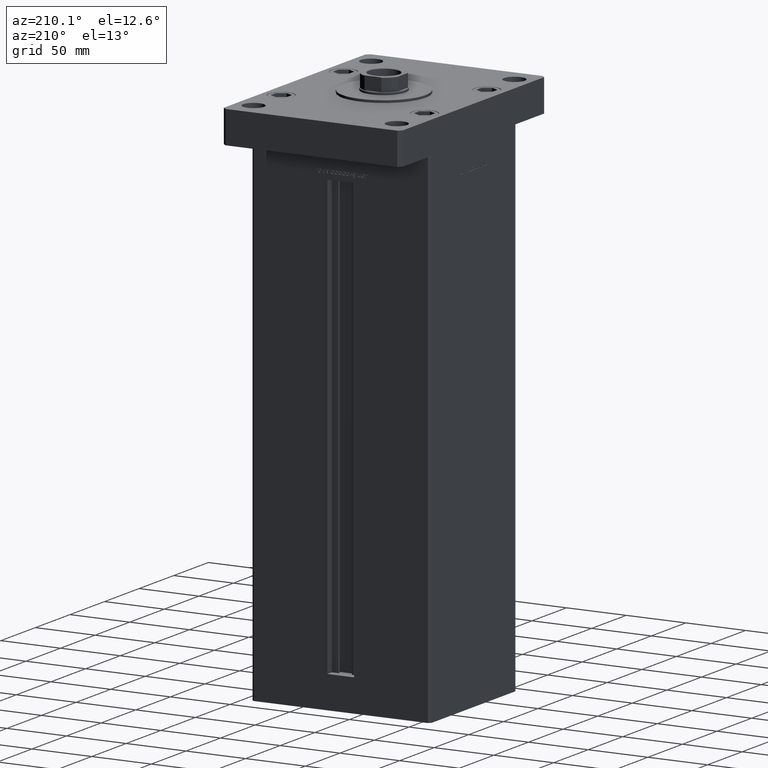
[diagram: clean part render]
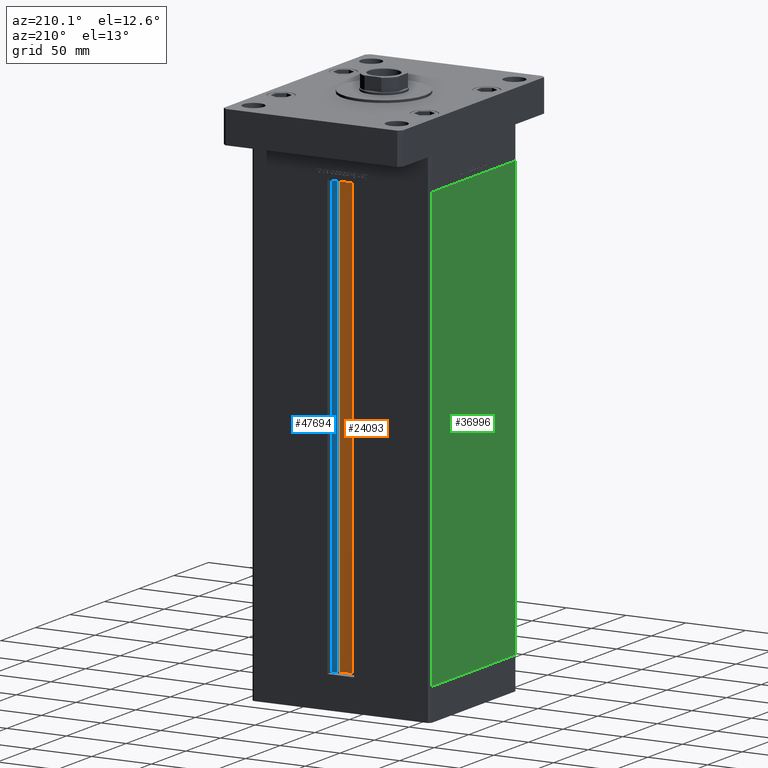
[diagram: same view with three faces highlighted in distinct colors, each labeled with its STEP entity id]
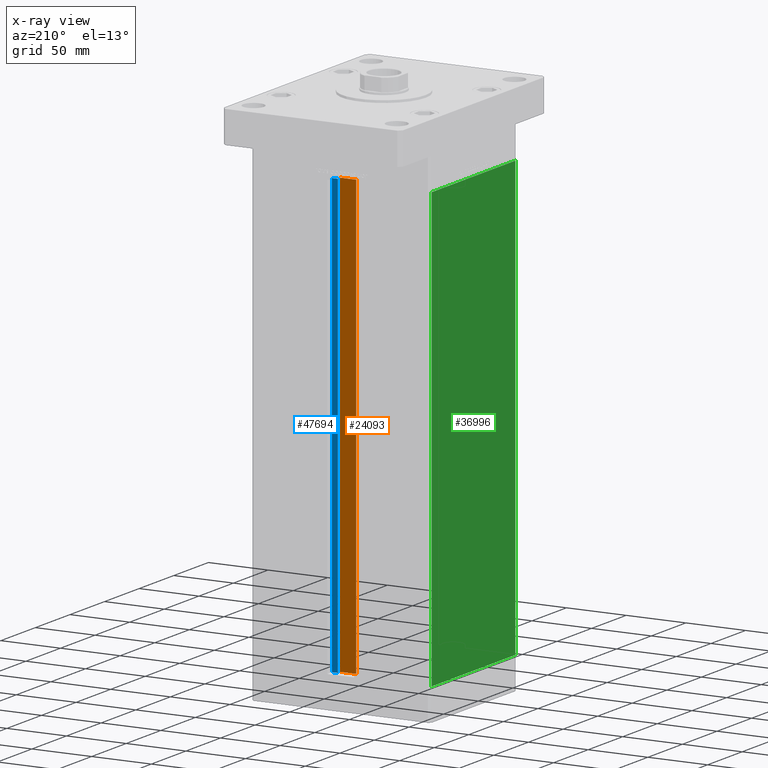
[diagram: x-ray of the same camera — body ghosted, the three highlighted faces saturated]
A machine part, auxiliary view with three faces highlighted in distinct colors.
The next image is the same camera in x-ray (body ghosted, the three faces saturated) — at least one of them is partly hidden behind the body in this view.
Their STEP definitions:

[orange] entity #24093 — the highlighted planar face has unit normal (0, -1, 0).
#1936 = EDGE_CURVE ( 'NONE', #35092, #10897, #30280, .T. ) ;
#2869 = ORIENTED_EDGE ( 'NONE', *, *, #33183, .F. ) ;
#3838 = LINE ( 'NONE', #4635, #18054 ) ;
#4635 = CARTESIAN_POINT ( 'NONE',  ( 6.876153656360466826, 51.99999999999986500, 0.000000000000000000 ) ) ;
#5378 = CARTESIAN_POINT ( 'NONE',  ( -6.876153656360466826, 51.99999999999986500, 0.000000000000000000 ) ) ;
#5651 = DIRECTION ( 'NONE',  ( 0.000000000000000000, -1.000000000000000000, -0.000000000000000000 ) ) ;
#6139 = CARTESIAN_POINT ( 'NONE',  ( 6.876153656360466826, 51.99999999999986500, 0.000000000000000000 ) ) ;
#6922 = VECTOR ( 'NONE', #18764, 1000.000000000000000 ) ;
#9692 = PLANE ( 'NONE',  #48301 ) ;
#10897 = VERTEX_POINT ( 'NONE', #26419 ) ;
#14590 = VECTOR ( 'NONE', #34525, 1000.000000000000000 ) ;
#18054 = VECTOR ( 'NONE', #41245, 1000.000000000000000 ) ;
#18499 = LINE ( 'NONE', #6139, #6922 ) ;
#18726 = EDGE_CURVE ( 'NONE', #35766, #27991, #3838, .T. ) ;
#18764 = DIRECTION ( 'NONE',  ( 1.000000000000000000, -0.000000000000000000, -0.000000000000000000 ) ) ;
#22038 = DIRECTION ( 'NONE',  ( 0.000000000000000000, 0.000000000000000000, -1.000000000000000000 ) ) ;
#22456 = DIRECTION ( 'NONE',  ( -0.000000000000000000, -0.000000000000000000, 1.000000000000000000 ) ) ;
#24093 = ADVANCED_FACE ( 'NONE', ( #46553 ), #9692, .F. ) ;
#24373 = ORIENTED_EDGE ( 'NONE', *, *, #1936, .T. ) ;
#26419 = CARTESIAN_POINT ( 'NONE',  ( -6.876153656360466826, 51.99999999999986500, 367.0000000000000000 ) ) ;
#27991 = VERTEX_POINT ( 'NONE', #31793 ) ;
#30280 = LINE ( 'NONE', #50774, #44305 ) ;
#31012 = CARTESIAN_POINT ( 'NONE',  ( 0.000000000000000000, 51.99999999999986500, 367.0000000000000000 ) ) ;
#31793 = CARTESIAN_POINT ( 'NONE',  ( 6.876153656360466826, 51.99999999999986500, 367.0000000000000000 ) ) ;
#33183 = EDGE_CURVE ( 'NONE', #27991, #10897, #35052, .T. ) ;
#34060 = EDGE_LOOP ( 'NONE', ( #45370, #40730, #24373, #2869 ) ) ;
#34525 = DIRECTION ( 'NONE',  ( -1.000000000000000000, 0.000000000000000000, 0.000000000000000000 ) ) ;
#35052 = LINE ( 'NONE', #31012, #14590 ) ;
#35092 = VERTEX_POINT ( 'NONE', #5378 ) ;
#35766 = VERTEX_POINT ( 'NONE', #46610 ) ;
#37577 = EDGE_CURVE ( 'NONE', #35092, #35766, #18499, .T. ) ;
#40730 = ORIENTED_EDGE ( 'NONE', *, *, #37577, .F. ) ;
#41245 = DIRECTION ( 'NONE',  ( -0.000000000000000000, -0.000000000000000000, 1.000000000000000000 ) ) ;
#42525 = CARTESIAN_POINT ( 'NONE',  ( 6.876153656360466826, 51.99999999999986500, 0.000000000000000000 ) ) ;
#44305 = VECTOR ( 'NONE', #22456, 1000.000000000000000 ) ;
#45370 = ORIENTED_EDGE ( 'NONE', *, *, #18726, .F. ) ;
#46553 = FACE_OUTER_BOUND ( 'NONE', #34060, .T. ) ;
#46610 = CARTESIAN_POINT ( 'NONE',  ( 6.876153656360466826, 51.99999999999986500, 0.000000000000000000 ) ) ;
#48301 = AXIS2_PLACEMENT_3D ( 'NONE', #42525, #5651, #22038 ) ;
#50774 = CARTESIAN_POINT ( 'NONE',  ( -6.876153656360466826, 51.99999999999986500, 0.000000000000000000 ) ) ;

[blue] entity #47694 — the highlighted planar face has unit normal (0, -1, 0).
#1486 = ORIENTED_EDGE ( 'NONE', *, *, #27254, .F. ) ;
#1693 = VERTEX_POINT ( 'NONE', #21991 ) ;
#2532 = ORIENTED_EDGE ( 'NONE', *, *, #42654, .F. ) ;
#4812 = LINE ( 'NONE', #25767, #47113 ) ;
#5851 = VECTOR ( 'NONE', #32858, 1000.000000000000000 ) ;
#7474 = EDGE_LOOP ( 'NONE', ( #1486, #2532, #40479, #26733 ) ) ;
#7884 = CARTESIAN_POINT ( 'NONE',  ( 6.183333333334001480, 55.99999999999999289, 367.0000000000000000 ) ) ;
#8646 = CARTESIAN_POINT ( 'NONE',  ( 11.25000000000000178, 55.99999999999999289, 0.000000000000000000 ) ) ;
#9640 = DIRECTION ( 'NONE',  ( -0.000000000000000000, -0.000000000000000000, 1.000000000000000000 ) ) ;
#10003 = CARTESIAN_POINT ( 'NONE',  ( 6.183333333334001480, 55.99999999999999289, 0.000000000000000000 ) ) ;
#13696 = EDGE_CURVE ( 'NONE', #1693, #42520, #4812, .T. ) ;
#15718 = CARTESIAN_POINT ( 'NONE',  ( 6.183333333334001480, 55.99999999999999289, 0.000000000000000000 ) ) ;
#17476 = AXIS2_PLACEMENT_3D ( 'NONE', #15718, #52365, #32406 ) ;
#18063 = LINE ( 'NONE', #10003, #47414 ) ;
#19128 = CARTESIAN_POINT ( 'NONE',  ( 0.000000000000000000, 55.99999999999999289, 367.0000000000000000 ) ) ;
#19755 = PLANE ( 'NONE',  #17476 ) ;
#21299 = DIRECTION ( 'NONE',  ( 1.000000000000000000, 0.000000000000000000, 0.000000000000000000 ) ) ;
#21991 = CARTESIAN_POINT ( 'NONE',  ( 6.183333333334001480, 55.99999999999999289, 0.000000000000000000 ) ) ;
#22906 = VERTEX_POINT ( 'NONE', #27455 ) ;
#25767 = CARTESIAN_POINT ( 'NONE',  ( 6.183333333334001480, 55.99999999999999289, 0.000000000000000000 ) ) ;
#26733 = ORIENTED_EDGE ( 'NONE', *, *, #35906, .F. ) ;
#27254 = EDGE_CURVE ( 'NONE', #47210, #22906, #36887, .T. ) ;
#27417 = VECTOR ( 'NONE', #51464, 1000.000000000000000 ) ;
#27455 = CARTESIAN_POINT ( 'NONE',  ( 11.25000000000000178, 55.99999999999999289, 367.0000000000000000 ) ) ;
#31231 = LINE ( 'NONE', #19128, #27417 ) ;
#32406 = DIRECTION ( 'NONE',  ( 0.000000000000000000, -0.000000000000000000, -1.000000000000000000 ) ) ;
#32858 = DIRECTION ( 'NONE',  ( -0.000000000000000000, -0.000000000000000000, 1.000000000000000000 ) ) ;
#35588 = CARTESIAN_POINT ( 'NONE',  ( 11.25000000000000178, 55.99999999999999289, 0.000000000000000000 ) ) ;
#35906 = EDGE_CURVE ( 'NONE', #22906, #42520, #31231, .T. ) ;
#36887 = LINE ( 'NONE', #8646, #5851 ) ;
#40479 = ORIENTED_EDGE ( 'NONE', *, *, #13696, .T. ) ;
#42520 = VERTEX_POINT ( 'NONE', #7884 ) ;
#42654 = EDGE_CURVE ( 'NONE', #1693, #47210, #18063, .T. ) ;
#44002 = FACE_OUTER_BOUND ( 'NONE', #7474, .T. ) ;
#47113 = VECTOR ( 'NONE', #9640, 1000.000000000000000 ) ;
#47210 = VERTEX_POINT ( 'NONE', #35588 ) ;
#47414 = VECTOR ( 'NONE', #21299, 1000.000000000000000 ) ;
#47694 = ADVANCED_FACE ( 'NONE', ( #44002 ), #19755, .F. ) ;
#51464 = DIRECTION ( 'NONE',  ( -1.000000000000000000, 0.000000000000000000, 0.000000000000000000 ) ) ;
#52365 = DIRECTION ( 'NONE',  ( 0.000000000000000000, -1.000000000000000000, 0.000000000000000000 ) ) ;

[green] entity #36996 — the highlighted planar face has unit normal (1, 0, 0).
#2027 = EDGE_LOOP ( 'NONE', ( #12993, #21915, #5703, #30093 ) ) ;
#4236 = DIRECTION ( 'NONE',  ( 2.293849224432141861E-16, -1.000000000000000000, 0.000000000000000000 ) ) ;
#4240 = CARTESIAN_POINT ( 'NONE',  ( -75.00000000000001421, 60.50000000000000000, 367.0000000000000000 ) ) ;
#4534 = CARTESIAN_POINT ( 'NONE',  ( -74.99999999999998579, -60.50000000000000000, 367.0000000000000000 ) ) ;
#4764 = CARTESIAN_POINT ( 'NONE',  ( -75.00000000000001421, 60.50000000000000000, 367.0000000000000000 ) ) ;
#5703 = ORIENTED_EDGE ( 'NONE', *, *, #28197, .F. ) ;
#7203 = LINE ( 'NONE', #20630, #42171 ) ;
#10043 = LINE ( 'NONE', #42876, #36417 ) ;
#10535 = DIRECTION ( 'NONE',  ( 2.293849224432141861E-16, -1.000000000000000000, 0.000000000000000000 ) ) ;
#12993 = ORIENTED_EDGE ( 'NONE', *, *, #37620, .T. ) ;
#13370 = CARTESIAN_POINT ( 'NONE',  ( -74.99999999999998579, -60.50000000000000000, 367.0000000000000000 ) ) ;
#15521 = VERTEX_POINT ( 'NONE', #4240 ) ;
#16204 = CARTESIAN_POINT ( 'NONE',  ( -75.00000000000001421, 60.50000000000000000, 0.000000000000000000 ) ) ;
#16599 = DIRECTION ( 'NONE',  ( 1.000000000000000000, 2.293849224432141861E-16, -0.000000000000000000 ) ) ;
#17394 = DIRECTION ( 'NONE',  ( -0.000000000000000000, -0.000000000000000000, -1.000000000000000000 ) ) ;
#20630 = CARTESIAN_POINT ( 'NONE',  ( -75.00000000000001421, 60.50000000000000000, 0.000000000000000000 ) ) ;
#21385 = CARTESIAN_POINT ( 'NONE',  ( -74.99999999999998579, -60.50000000000000000, 0.000000000000000000 ) ) ;
#21915 = ORIENTED_EDGE ( 'NONE', *, *, #48795, .F. ) ;
#22892 = CARTESIAN_POINT ( 'NONE',  ( -75.00000000000001421, 60.50000000000000000, 367.0000000000000000 ) ) ;
#23214 = LINE ( 'NONE', #13370, #48493 ) ;
#24359 = VERTEX_POINT ( 'NONE', #4534 ) ;
#28197 = EDGE_CURVE ( 'NONE', #15521, #24359, #38782, .T. ) ;
#30093 = ORIENTED_EDGE ( 'NONE', *, *, #48040, .T. ) ;
#31764 = AXIS2_PLACEMENT_3D ( 'NONE', #4764, #16599, #45929 ) ;
#33764 = VERTEX_POINT ( 'NONE', #16204 ) ;
#34068 = FACE_OUTER_BOUND ( 'NONE', #2027, .T. ) ;
#36417 = VECTOR ( 'NONE', #51240, 1000.000000000000000 ) ;
#36996 = ADVANCED_FACE ( 'NONE', ( #34068 ), #49727, .F. ) ;
#37620 = EDGE_CURVE ( 'NONE', #33764, #38989, #7203, .T. ) ;
#38782 = LINE ( 'NONE', #22892, #40268 ) ;
#38989 = VERTEX_POINT ( 'NONE', #21385 ) ;
#40268 = VECTOR ( 'NONE', #10535, 1000.000000000000000 ) ;
#42171 = VECTOR ( 'NONE', #4236, 1000.000000000000000 ) ;
#42876 = CARTESIAN_POINT ( 'NONE',  ( -75.00000000000001421, 60.50000000000000000, 367.0000000000000000 ) ) ;
#45929 = DIRECTION ( 'NONE',  ( -2.293849224432141861E-16, 1.000000000000000000, 0.000000000000000000 ) ) ;
#48040 = EDGE_CURVE ( 'NONE', #15521, #33764, #10043, .T. ) ;
#48493 = VECTOR ( 'NONE', #17394, 1000.000000000000000 ) ;
#48795 = EDGE_CURVE ( 'NONE', #24359, #38989, #23214, .T. ) ;
#49727 = PLANE ( 'NONE',  #31764 ) ;
#51240 = DIRECTION ( 'NONE',  ( -0.000000000000000000, -0.000000000000000000, -1.000000000000000000 ) ) ;